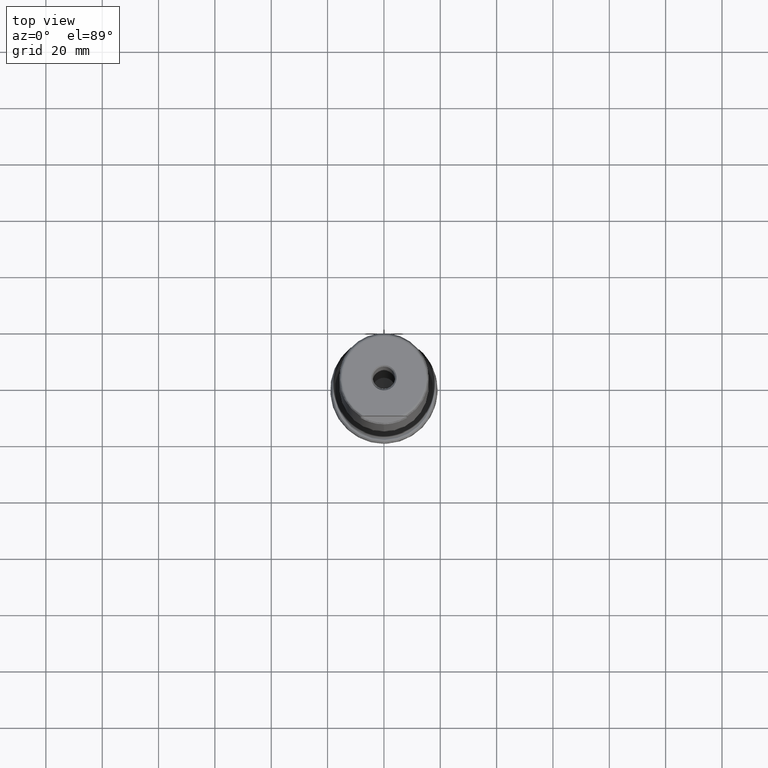
[diagram: clean part render]
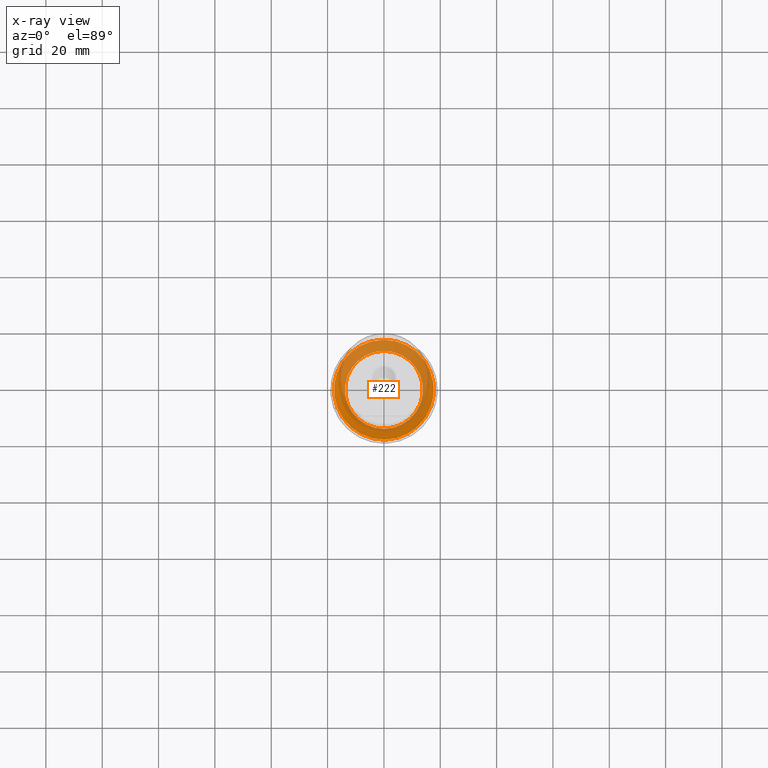
[diagram: x-ray — body ghosted, one internal face saturated and labeled with its STEP entity id]
A machine part, top view, then the same camera in x-ray: the body is ghosted and one INTERNAL B-rep face — a face not visible from any outside direction — is saturated and labeled: STEP entity #222.
In plain terms, the highlighted face is a SurfaceOfRevolution surface.
Its self-contained STEP definition (entity closure, byte-faithful):
#113=SURFACE_OF_REVOLUTION('',#798,#134);
#134=AXIS1_PLACEMENT('',#1545,#1030);
#222=ADVANCED_FACE('',(#337,#338),#113,.F.);
#272=CIRCLE('',#870,17.7296961327996);
#273=CIRCLE('',#871,13.8333362158921);
#337=FACE_BOUND('',#427,.T.);
#338=FACE_BOUND('',#428,.T.);
#427=EDGE_LOOP('',(#604));
#428=EDGE_LOOP('',(#605));
#604=ORIENTED_EDGE('',*,*,#748,.T.);
#605=ORIENTED_EDGE('',*,*,#749,.F.);
#680=VERTEX_POINT('',#1518);
#681=VERTEX_POINT('',#1532);
#748=EDGE_CURVE('',#680,#680,#272,.T.);
#749=EDGE_CURVE('',#681,#681,#273,.T.);
#798=B_SPLINE_CURVE_WITH_KNOTS('',3,(#1533,#1534,#1535,#1536,#1537,#1538,
#1539,#1540,#1541,#1542,#1543,#1544),.UNSPECIFIED.,.F.,.F.,(4,1,1,1,1,1,
1,1,1,4),(0.,0.221418157861957,0.365983083750147,0.510548009638337,0.655112935526527,
0.799677861414718,0.871960324358813,0.90810155583086,0.944242787302908,
1.),.UNSPECIFIED.);
#870=AXIS2_PLACEMENT_3D('',#1517,#1025,#1026);
#871=AXIS2_PLACEMENT_3D('',#1531,#1028,#1029);
#1025=DIRECTION('',(0.,1.17145536458252E-15,1.));
#1026=DIRECTION('',(0.,-1.,1.17411384582115E-15));
#1028=DIRECTION('',(0.,1.17145536458252E-15,1.));
#1029=DIRECTION('',(0.,-1.,1.19131587381265E-15));
#1030=DIRECTION('',(0.,1.17145536458252E-15,1.));
#1517=CARTESIAN_POINT('',(0.,8.5735685095396E-15,7.31873255161966));
#1518=CARTESIAN_POINT('',(0.,-17.7296961327996,7.31873255161968));
#1531=CARTESIAN_POINT('',(0.,6.07765453604987E-15,5.18812301330473));
#1532=CARTESIAN_POINT('',(0.,-13.8333362158921,5.18812301330475));
#1533=CARTESIAN_POINT('',(13.7246977279668,-1.73027958880423,5.1881233091924));
#1534=CARTESIAN_POINT('',(14.0082405570873,-1.7298387403734,5.35599977787551));
#1535=CARTESIAN_POINT('',(14.4788159576323,-1.72968079193832,5.63026818596257));
#1536=CARTESIAN_POINT('',(15.1413340919188,-1.73133418273666,6.00220472589755));
#1537=CARTESIAN_POINT('',(15.7083018207793,-1.73405819245577,6.31058727418813));
#1538=CARTESIAN_POINT('',(16.2788358738572,-1.7379337971363,6.61231961001669));
#1539=CARTESIAN_POINT('',(16.7558880874491,-1.7416057068774,6.86069731612945));
#1540=CARTESIAN_POINT('',(17.0903403026645,-1.74462120435826,7.03357011957152));
#1541=CARTESIAN_POINT('',(17.2816079996076,-1.74589157701397,7.13201784257779));
#1542=CARTESIAN_POINT('',(17.4512882621098,-1.7487310187959,7.21907289700908));
#1543=CARTESIAN_POINT('',(17.5723096107671,-1.73389083382156,7.28112534415064));
#1544=CARTESIAN_POINT('',(17.6456805729356,-1.7239727606125,7.31873255161966));
#1545=CARTESIAN_POINT('',(0.,0.,0.));